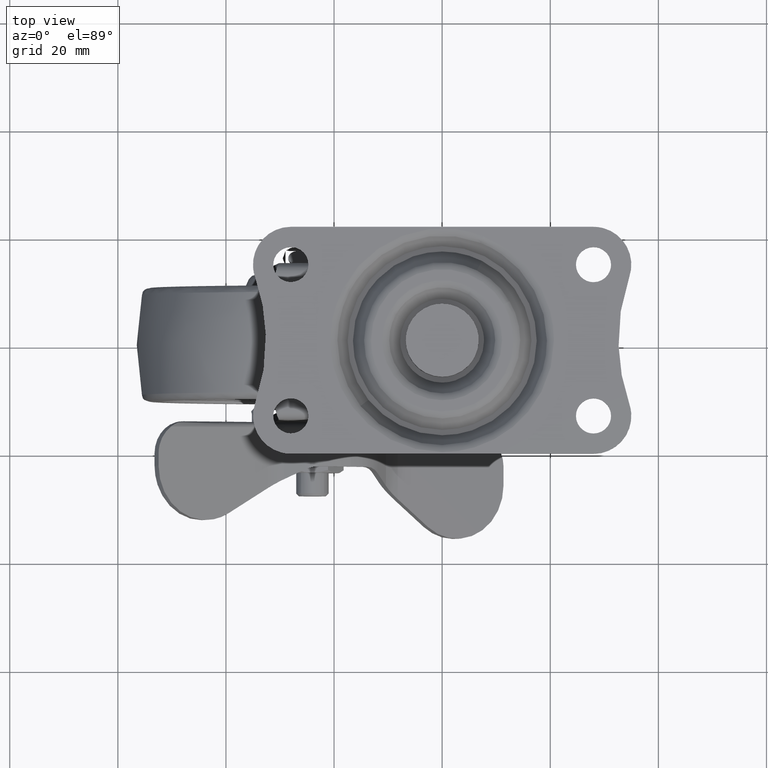
[diagram: clean part render]
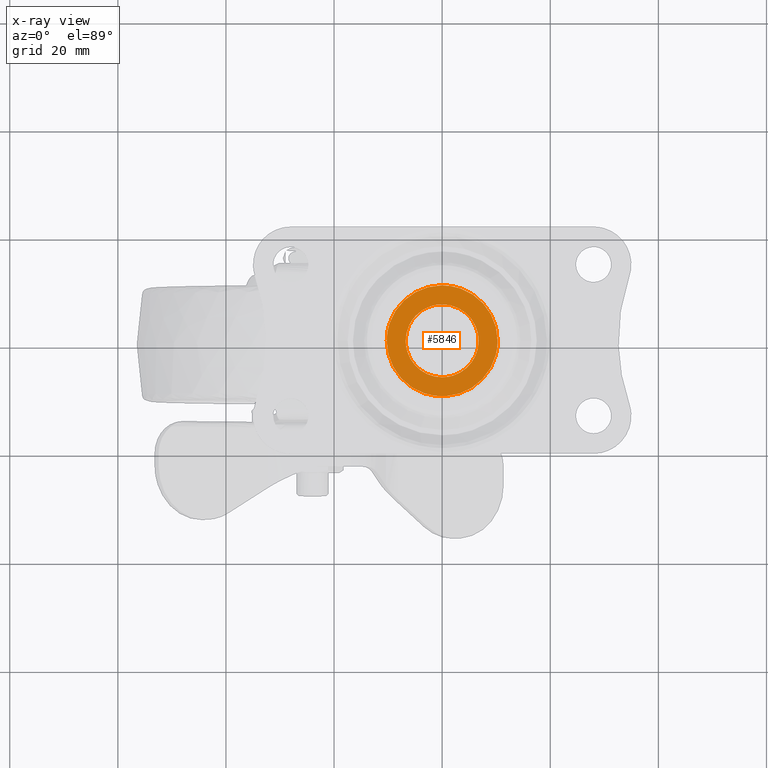
[diagram: x-ray — body ghosted, one internal face saturated and labeled with its STEP entity id]
A machine part, top view, then the same camera in x-ray: the body is ghosted and one INTERNAL B-rep face — a face not visible from any outside direction — is saturated and labeled: STEP entity #5846.
In plain terms, the highlighted face is a freeform B-spline surface patch.
Its self-contained STEP definition (entity closure, byte-faithful):
#70=CARTESIAN_POINT('',(4.358759072719084,5.154000788823142,-4.899998800000041));
#71=VERTEX_POINT('',#70);
#72=CARTESIAN_POINT('',(6.750000000000000,0.0,-4.899998800000031));
#73=VERTEX_POINT('',#72);
#74=CARTESIAN_POINT('',(4.358759072719084,5.154000788823142,-4.899998800000041));
#75=CARTESIAN_POINT('',(4.755317650195047,4.818786075554232,-4.899998800000041));
#76=CARTESIAN_POINT('',(5.365188327754586,4.168295350858675,-4.899998800000040));
#77=CARTESIAN_POINT('',(6.012721627516464,3.127486453564573,-4.899998800000033));
#78=CARTESIAN_POINT('',(6.574139116863480,1.801850254517574,-4.899998800000037));
#79=CARTESIAN_POINT('',(6.750402320402515,0.733115384790695,-4.899998800000033));
#80=CARTESIAN_POINT('',(6.750000000000000,0.0,-4.899998800000031));
#81=B_SPLINE_CURVE_WITH_KNOTS('',3,(#74,#75,#76,#77,#78,#79,#80),.UNSPECIFIED.,.F.,.U.,(4,1,1,1,4),(0.000000045150648,1.557747288149807,2.657350217599588,3.665283979990297,5.864456022878929),.UNSPECIFIED.);
#82=EDGE_CURVE('',#71,#73,#81,.T.);
#147=CARTESIAN_POINT('',(-4.896276794460313,4.646393085622989,-4.899998800000036));
#148=VERTEX_POINT('',#147);
#154=CARTESIAN_POINT('',(-6.750000000000000,0.0,-4.899998800000031));
#155=VERTEX_POINT('',#154);
#156=CARTESIAN_POINT('',(-6.750000000000000,0.0,-4.899998800000031));
#157=CARTESIAN_POINT('',(-6.750076302214159,0.480447153217239,-4.899998800000040));
#158=CARTESIAN_POINT('',(-6.644123110784380,1.467991777903460,-4.899998800000025));
#159=CARTESIAN_POINT('',(-6.093349400776198,3.096493358696681,-4.899998800000048));
#160=CARTESIAN_POINT('',(-5.392677303516218,4.123886236778320,-4.899998800000028));
#161=CARTESIAN_POINT('',(-4.896276794460313,4.646393085622989,-4.899998800000036));
#162=B_SPLINE_CURVE_WITH_KNOTS('',3,(#156,#157,#158,#159,#160,#161),.UNSPECIFIED.,.F.,.U.,(4,1,1,4),(0.000000035229172,1.441338494585023,2.962733125023183,5.124752854103829),.UNSPECIFIED.);
#163=EDGE_CURVE('',#155,#148,#162,.T.);
#165=CARTESIAN_POINT('',(-0.000001437793888,-6.749999999999846,-4.899998800000031));
#166=VERTEX_POINT('',#165);
#167=CARTESIAN_POINT('',(-0.000001437793888,-6.749999999999846,-4.899998800000031));
#168=CARTESIAN_POINT('',(-0.414173202274707,-6.750038579932713,-4.899998800000032));
#169=CARTESIAN_POINT('',(-1.242507029399105,-6.673529048257018,-4.899998800000031));
#170=CARTESIAN_POINT('',(-2.549799829646595,-6.303191107294121,-4.899998800000036));
#171=CARTESIAN_POINT('',(-3.681265480012879,-5.707308145719963,-4.899998800000047));
#172=CARTESIAN_POINT('',(-4.675541356801536,-4.911414525118519,-4.899998800000011));
#173=CARTESIAN_POINT('',(-5.526416150136193,-3.961153641323527,-4.899998800000044));
#174=CARTESIAN_POINT('',(-6.121951269977865,-2.924699701356449,-4.899998800000043));
#175=CARTESIAN_POINT('',(-6.614673202156436,-1.573706518234120,-4.899998800000009));
#176=CARTESIAN_POINT('',(-6.750337425246556,-0.662729103819151,-4.899998800000135));
#177=CARTESIAN_POINT('',(-6.750000000000000,0.0,-4.899998800000031));
#178=B_SPLINE_CURVE_WITH_KNOTS('',3,(#167,#168,#169,#170,#171,#172,#173,#174,#175,#176,#177),.UNSPECIFIED.,.F.,.U.,(4,1,1,1,1,1,1,1,4),(0.000000138228513,1.242516715556944,2.485062534303834,4.058966494292111,5.052985418536273,6.295465730931436,7.869369015604660,8.614903103841160,10.602940924044370),.UNSPECIFIED.);
#179=EDGE_CURVE('',#166,#155,#178,.T.);
#181=CARTESIAN_POINT('',(6.750000000000000,0.0,-4.899998800000031));
#182=CARTESIAN_POINT('',(6.750021913803883,-0.386553748929976,-4.899998800000030));
#183=CARTESIAN_POINT('',(6.678681427961409,-1.214897332448926,-4.899998800000037));
#184=CARTESIAN_POINT('',(6.345690805620635,-2.418194845325850,-4.899998800000021));
#185=CARTESIAN_POINT('',(5.693100661792572,-3.735041764074019,-4.899998800000029));
#186=CARTESIAN_POINT('',(4.862348144329265,-4.747358564242767,-4.899998800000053));
#187=CARTESIAN_POINT('',(3.857150754660879,-5.572084134815614,-4.899998800000021));
#188=CARTESIAN_POINT('',(3.021697019403381,-6.065912679898419,-4.899998800000037));
#189=CARTESIAN_POINT('',(1.711711171157251,-6.589884186955823,-4.899998800000028));
#190=CARTESIAN_POINT('',(0.717971564060756,-6.750433312950999,-4.899998800000036));
#191=CARTESIAN_POINT('',(-0.000001437793888,-6.749999999999846,-4.899998800000031));
#192=B_SPLINE_CURVE_WITH_KNOTS('',3,(#181,#182,#183,#184,#185,#186,#187,#188,#189,#190,#191),.UNSPECIFIED.,.F.,.U.,(4,1,1,1,1,1,1,1,4),(0.000000137732750,1.159666170731445,2.485062913745820,3.727616361982797,5.549959820865835,6.378326836217497,7.620859669508500,8.449222999848482,10.602942544783341),.UNSPECIFIED.);
#193=EDGE_CURVE('',#73,#166,#192,.T.);
#212=CARTESIAN_POINT('',(0.000001437793920,6.749999999999846,-4.899998800000031));
#213=VERTEX_POINT('',#212);
#214=CARTESIAN_POINT('',(0.000001437793920,6.749999999999846,-4.899998800000031));
#215=CARTESIAN_POINT('',(0.617006714245700,6.750203902578134,-4.899998800000037));
#216=CARTESIAN_POINT('',(1.727489281935881,6.596665671639042,-4.899998800000036));
#217=CARTESIAN_POINT('',(3.200805724468604,6.001443450484763,-4.899998800000026));
#218=CARTESIAN_POINT('',(4.000753417770061,5.456840375349225,-4.899998800000062));
#219=CARTESIAN_POINT('',(4.358759072719084,5.154000788823142,-4.899998800000041));
#220=B_SPLINE_CURVE_WITH_KNOTS('',3,(#214,#215,#216,#217,#218,#219),.UNSPECIFIED.,.F.,.U.,(4,1,1,4),(0.000000027106771,1.850983702175925,3.331746851144043,4.738486802425187),.UNSPECIFIED.);
#221=EDGE_CURVE('',#213,#71,#220,.T.);
#223=CARTESIAN_POINT('',(-4.896276794460313,4.646393085622989,-4.899998800000036));
#224=CARTESIAN_POINT('',(-4.385897678009681,5.184817286609863,-4.899998800000046));
#225=CARTESIAN_POINT('',(-3.346882093888751,5.968503941599808,-4.899998800000019));
#226=CARTESIAN_POINT('',(-1.626270749889247,6.618686675479603,-4.899998800000057));
#227=CARTESIAN_POINT('',(-0.542117671932085,6.750117152240529,-4.899998800000025));
#228=CARTESIAN_POINT('',(0.000001437793920,6.749999999999846,-4.899998800000031));
#229=B_SPLINE_CURVE_WITH_KNOTS('',3,(#223,#224,#225,#226,#227,#228),.UNSPECIFIED.,.F.,.U.,(4,1,1,4),(0.000000037369039,2.225530050024357,3.851848157540501,5.478190257857342),.UNSPECIFIED.);
#230=EDGE_CURVE('',#148,#213,#229,.T.);
#1548=CARTESIAN_POINT('',(-10.264692522079001,0.0,-4.899998799999991));
#1549=VERTEX_POINT('',#1548);
#1550=CARTESIAN_POINT('',(0.715790388095012,-10.239704972342730,-4.899998923238887));
#1551=VERTEX_POINT('',#1550);
#1552=CARTESIAN_POINT('',(-10.264692522079001,0.0,-4.899998799999991));
#1553=CARTESIAN_POINT('',(-10.264943379557369,-0.877115210887438,-4.899998792931624));
#1554=CARTESIAN_POINT('',(-10.100664630164840,-2.148748269448311,-4.899998785768290));
#1555=CARTESIAN_POINT('',(-9.530718191362952,-3.903492469888658,-4.899998782313883));
#1556=CARTESIAN_POINT('',(-8.834543306482956,-5.326595332391094,-4.899998783894950));
#1557=CARTESIAN_POINT('',(-7.903160719619804,-6.609218595067710,-4.899998791013670));
#1558=CARTESIAN_POINT('',(-6.826883914584491,-7.707106564129249,-4.899998802334324));
#1559=CARTESIAN_POINT('',(-5.472654675863886,-8.760050734491868,-4.899998819224156));
#1560=CARTESIAN_POINT('',(-3.818309916910400,-9.597307694391821,-4.899998843472983));
#1561=CARTESIAN_POINT('',(-1.660103122853243,-10.209146300319940,-4.899998878976260));
#1562=CARTESIAN_POINT('',(-0.202921514626258,-10.304259951929140,-4.899998905508396));
#1563=CARTESIAN_POINT('',(0.715790388095012,-10.239704972342730,-4.899998923238887));
#1564=B_SPLINE_CURVE_WITH_KNOTS('',3,(#1552,#1553,#1554,#1555,#1556,#1557,#1558,#1559,#1560,#1561,#1562,#1563),.UNSPECIFIED.,.F.,.U.,(4,1,1,1,1,1,1,1,1,4),(0.000000077281765,2.631265224329766,3.815360865462427,5.525718242858286,7.367623351572224,8.551659102583665,10.130415918464060,12.498606352401950,14.077398517705941,16.840228360776369),.UNSPECIFIED.);
#1565=EDGE_CURVE('',#1549,#1551,#1564,.T.);
#1567=CARTESIAN_POINT('',(-0.128986536138532,10.263882124873090,-4.899998923187158));
#1568=VERTEX_POINT('',#1567);
#1569=CARTESIAN_POINT('',(-0.128986536138532,10.263882124873090,-4.899998923187158));
#1570=CARTESIAN_POINT('',(-0.628776839830931,10.257607811474109,-4.899998917112824));
#1571=CARTESIAN_POINT('',(-1.835522614794761,10.154113651860010,-4.899998902446278));
#1572=CARTESIAN_POINT('',(-3.574709340108577,9.687523843836642,-4.899998881308601));
#1573=CARTESIAN_POINT('',(-5.042156999011872,8.977059967653579,-4.899998863473545));
#1574=CARTESIAN_POINT('',(-6.293989116139196,8.148371228192389,-4.899998848259051));
#1575=CARTESIAN_POINT('',(-7.647279880619828,6.965112359676080,-4.899998831811510));
#1576=CARTESIAN_POINT('',(-8.799436563325838,5.414656042940018,-4.899998817808298));
#1577=CARTESIAN_POINT('',(-9.660716233142800,3.605288572544239,-4.899998807340665));
#1578=CARTESIAN_POINT('',(-10.146473167117170,1.916023456802677,-4.899998801436730));
#1579=CARTESIAN_POINT('',(-10.264748881624071,0.624786335882569,-4.899998799999439));
#1580=CARTESIAN_POINT('',(-10.264692522079001,0.0,-4.899998799999991));
#1581=B_SPLINE_CURVE_WITH_KNOTS('',3,(#1569,#1570,#1571,#1572,#1573,#1574,#1575,#1576,#1577,#1578,#1579,#1580),.UNSPECIFIED.,.F.,.U.,(4,1,1,1,1,1,1,1,1,4),(0.000000090289687,1.499507170164508,3.623832339698378,5.373289106608244,6.372956761243763,8.122358604327172,10.746525134599100,12.121099166111350,14.120482705311790,15.994850168810270),.UNSPECIFIED.);
#1582=EDGE_CURVE('',#1568,#1549,#1581,.T.);
#1686=CARTESIAN_POINT('',(10.264692522079001,0.0,-4.899998799999991));
#1687=VERTEX_POINT('',#1686);
#1688=CARTESIAN_POINT('',(0.715790388095012,-10.239704972342730,-4.899998923238887));
#1689=CARTESIAN_POINT('',(1.476294804283717,-10.186682430527320,-4.899998913423764));
#1690=CARTESIAN_POINT('',(2.826449141618528,-9.939098985330604,-4.899998895998542));
#1691=CARTESIAN_POINT('',(4.621527787521401,-9.220978580234059,-4.899998872831147));
#1692=CARTESIAN_POINT('',(5.993885953456684,-8.378438083139503,-4.899998855119348));
#1693=CARTESIAN_POINT('',(7.196072977743331,-7.371669715452174,-4.899998839603851));
#1694=CARTESIAN_POINT('',(8.132614239369337,-6.318922702569484,-4.899998827516761));
#1695=CARTESIAN_POINT('',(8.933200471943922,-5.113657935402262,-4.899998817184336));
#1696=CARTESIAN_POINT('',(9.554848827392263,-3.850537422351557,-4.899998809161280));
#1697=CARTESIAN_POINT('',(10.108580080668601,-2.126463147990156,-4.899998802014828));
#1698=CARTESIAN_POINT('',(10.264884596677071,-0.802485417061023,-4.899998799997436));
#1699=CARTESIAN_POINT('',(10.264692522079001,0.0,-4.899998799999991));
#1700=B_SPLINE_CURVE_WITH_KNOTS('',3,(#1688,#1689,#1690,#1691,#1692,#1693,#1694,#1695,#1696,#1697,#1698,#1699),.UNSPECIFIED.,.F.,.U.,(4,1,1,1,1,1,1,1,1,4),(0.000000093384500,2.287034111261376,4.092606452872630,5.777806987765059,7.101886245473807,8.787035988793949,9.990757674356715,11.435221000175940,13.000045378333191,15.407457840560159),.UNSPECIFIED.);
#1701=EDGE_CURVE('',#1551,#1687,#1700,.T.);
#1750=CARTESIAN_POINT('',(10.264692522079001,0.0,-4.899998799999991));
#1751=CARTESIAN_POINT('',(10.265089236246469,0.973524370282879,-4.899998791937749));
#1752=CARTESIAN_POINT('',(10.064456897779380,2.369994797636736,-4.899998784401277));
#1753=CARTESIAN_POINT('',(9.373375217986325,4.284622657088484,-4.899998782397873));
#1754=CARTESIAN_POINT('',(8.679245780419809,5.552249985759862,-4.899998785808259));
#1755=CARTESIAN_POINT('',(7.653853897783002,6.902699806858010,-4.899998795166072));
#1756=CARTESIAN_POINT('',(6.367444385141874,8.142119567024112,-4.899998810668619));
#1757=CARTESIAN_POINT('',(4.531503054018659,9.299980130587922,-4.899998837848794));
#1758=CARTESIAN_POINT('',(2.328082872899421,10.094634615882390,-4.899998875391469));
#1759=CARTESIAN_POINT('',(0.717463329623149,10.274749495625001,-4.899998906149642));
#1760=CARTESIAN_POINT('',(-0.128986536138532,10.263882124873090,-4.899998923187158));
#1761=B_SPLINE_CURVE_WITH_KNOTS('',3,(#1750,#1751,#1752,#1753,#1754,#1755,#1756,#1757,#1758,#1759,#1760),.UNSPECIFIED.,.F.,.U.,(4,1,1,1,1,1,1,1,4),(0.000000086439702,2.920417538715761,4.190185535076486,6.094837164816301,7.237597361495681,9.269162794903490,11.427774312720491,13.713330665793981,16.252834873144678),.UNSPECIFIED.);
#1762=EDGE_CURVE('',#1687,#1568,#1761,.T.);
#5827=CARTESIAN_POINT('',(-11.290135072529580,-11.288937008777051,-4.899998799999991));
#5828=CARTESIAN_POINT('',(11.290135806717601,-11.288937008777051,-4.899998799999991));
#5829=CARTESIAN_POINT('',(-11.290135072529580,11.289228321451439,-4.899998799999991));
#5830=CARTESIAN_POINT('',(11.290135806717601,11.289228321451439,-4.899998799999991));
#5831=B_SPLINE_SURFACE_WITH_KNOTS('',1,1,((#5827,#5829),(#5828,#5830)),.UNSPECIFIED.,.F.,.F.,.U.,(2,2),(2,2),(0.0,22.580270879247180),(0.0,22.578165330228490),.UNSPECIFIED.);
#5832=ORIENTED_EDGE('',*,*,#1565,.T.);
#5833=ORIENTED_EDGE('',*,*,#1701,.T.);
#5834=ORIENTED_EDGE('',*,*,#1762,.T.);
#5835=ORIENTED_EDGE('',*,*,#1582,.T.);
#5836=EDGE_LOOP('',(#5832,#5833,#5834,#5835));
#5837=FACE_OUTER_BOUND('',#5836,.T.);
#5838=ORIENTED_EDGE('',*,*,#193,.T.);
#5839=ORIENTED_EDGE('',*,*,#179,.T.);
#5840=ORIENTED_EDGE('',*,*,#163,.T.);
#5841=ORIENTED_EDGE('',*,*,#230,.T.);
#5842=ORIENTED_EDGE('',*,*,#221,.T.);
#5843=ORIENTED_EDGE('',*,*,#82,.T.);
#5844=EDGE_LOOP('',(#5838,#5839,#5840,#5841,#5842,#5843));
#5845=FACE_BOUND('',#5844,.T.);
#5846=ADVANCED_FACE('',(#5837,#5845),#5831,.T.);